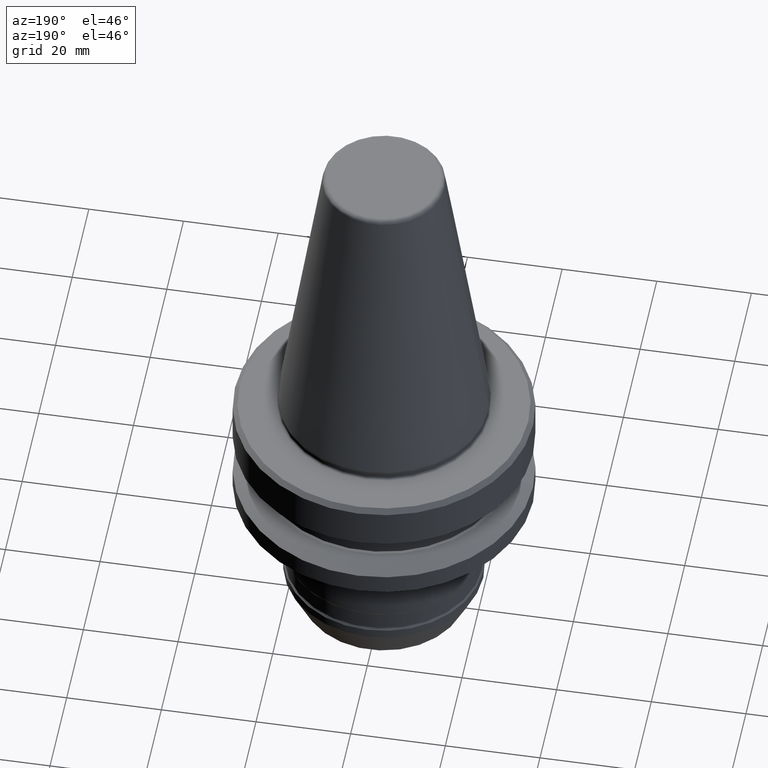
[diagram: clean part render]
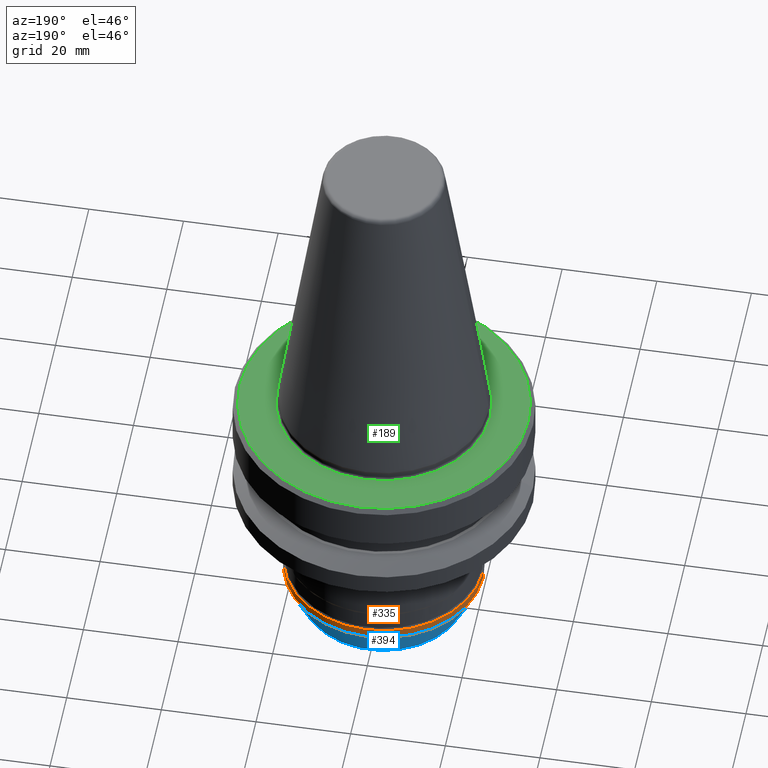
[diagram: same view with three faces highlighted in distinct colors, each labeled with its STEP entity id]
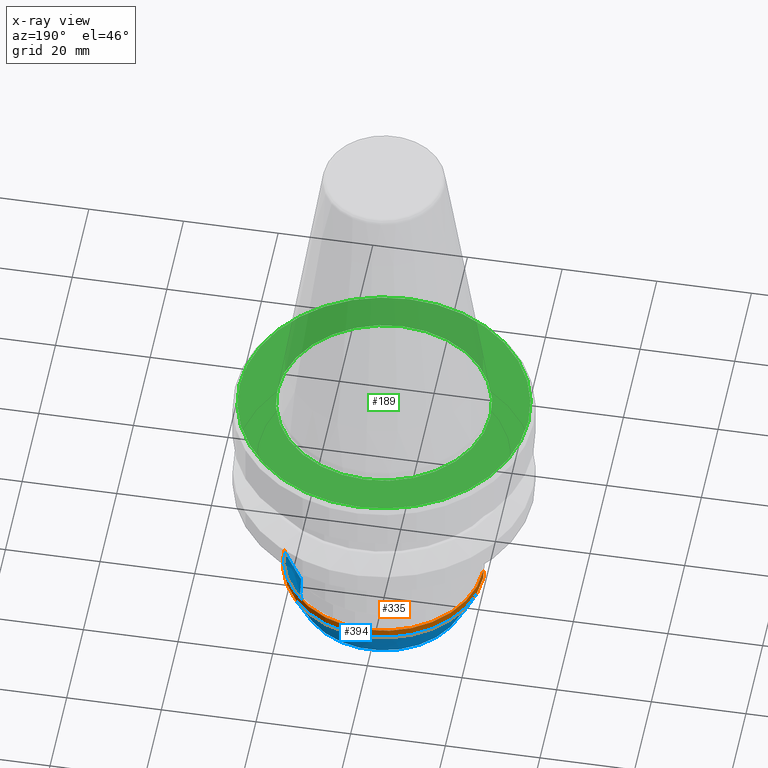
[diagram: x-ray of the same camera — body ghosted, the three highlighted faces saturated]
A machine part, auxiliary view with three faces highlighted in distinct colors.
The next image is the same camera in x-ray (body ghosted, the three faces saturated) — at least one of them is partly hidden behind the body in this view.
Their STEP definitions:

[orange] entity #335 — the highlighted cylindrical surface (partial cylindrical patch) has radius 21 mm, axis along (-0, -0, 1).
#58 = LINE ( 'NONE', #1217, #71 ) ;
#62 = AXIS2_PLACEMENT_3D ( 'NONE', #1149, #605, #1219 ) ;
#63 = CARTESIAN_POINT ( 'NONE',  ( 21.00000000002015500, 0.0000000000000000000, -48.50422577833094100 ) ) ;
#67 = DIRECTION ( 'NONE',  ( -0.0000000000000000000, -0.0000000000000000000, 1.000000000000000000 ) ) ;
#71 = VECTOR ( 'NONE', #884, 1000.000000000000000 ) ;
#83 = DIRECTION ( 'NONE',  ( 1.000000000000000000, 0.0000000000000000000, 0.0000000000000000000 ) ) ;
#121 = EDGE_CURVE ( 'NONE', #1015, #1044, #574, .T. ) ;
#172 = EDGE_CURVE ( 'NONE', #764, #1015, #526, .T. ) ;
#219 = DIRECTION ( 'NONE',  ( -0.0000000000000000000, -0.0000000000000000000, 1.000000000000000000 ) ) ;
#235 = CARTESIAN_POINT ( 'NONE',  ( 0.0000000000000000000, 0.0000000000000000000, -48.50422577833094100 ) ) ;
#240 = CARTESIAN_POINT ( 'NONE',  ( -21.00000000002015500, 2.571758278211910000E-015, -50.49422577833109900 ) ) ;
#265 = CIRCLE ( 'NONE', #271, 21.00000000002015500 ) ;
#271 = AXIS2_PLACEMENT_3D ( 'NONE', #235, #994, #83 ) ;
#331 = CARTESIAN_POINT ( 'NONE',  ( 0.0000000000000000000, 0.0000000000000000000, 112.2638323510917200 ) ) ;
#335 = ADVANCED_FACE ( 'NONE', ( #375 ), #368, .T. ) ;
#368 = CYLINDRICAL_SURFACE ( 'NONE', #371, 21.00000000002015500 ) ;
#371 = AXIS2_PLACEMENT_3D ( 'NONE', #331, #219, #1010 ) ;
#375 = FACE_OUTER_BOUND ( 'NONE', #1236, .T. ) ;
#526 = CIRCLE ( 'NONE', #62, 21.00000000002015500 ) ;
#528 = EDGE_CURVE ( 'NONE', #706, #1044, #265, .T. ) ;
#553 = VECTOR ( 'NONE', #67, 1000.000000000000000 ) ;
#574 = LINE ( 'NONE', #1060, #553 ) ;
#605 = DIRECTION ( 'NONE',  ( -0.0000000000000000000, -0.0000000000000000000, 1.000000000000000000 ) ) ;
#629 = ORIENTED_EDGE ( 'NONE', *, *, #172, .T. ) ;
#706 = VERTEX_POINT ( 'NONE', #63 ) ;
#764 = VERTEX_POINT ( 'NONE', #1177 ) ;
#812 = ORIENTED_EDGE ( 'NONE', *, *, #528, .F. ) ;
#884 = DIRECTION ( 'NONE',  ( -0.0000000000000000000, -0.0000000000000000000, 1.000000000000000000 ) ) ;
#981 = ORIENTED_EDGE ( 'NONE', *, *, #1242, .F. ) ;
#994 = DIRECTION ( 'NONE',  ( -0.0000000000000000000, -0.0000000000000000000, 1.000000000000000000 ) ) ;
#1010 = DIRECTION ( 'NONE',  ( 1.000000000000000000, 0.0000000000000000000, 0.0000000000000000000 ) ) ;
#1015 = VERTEX_POINT ( 'NONE', #240 ) ;
#1031 = CARTESIAN_POINT ( 'NONE',  ( -21.00000000002015500, 2.571758278211910000E-015, -48.50422577833094100 ) ) ;
#1044 = VERTEX_POINT ( 'NONE', #1031 ) ;
#1060 = CARTESIAN_POINT ( 'NONE',  ( -21.00000000002015500, 2.571758278211910000E-015, 112.2638323510917200 ) ) ;
#1149 = CARTESIAN_POINT ( 'NONE',  ( 0.0000000000000000000, 0.0000000000000000000, -50.49422577833109900 ) ) ;
#1177 = CARTESIAN_POINT ( 'NONE',  ( 21.00000000002015500, 0.0000000000000000000, -50.49422577833109900 ) ) ;
#1211 = ORIENTED_EDGE ( 'NONE', *, *, #121, .T. ) ;
#1217 = CARTESIAN_POINT ( 'NONE',  ( 21.00000000002015500, 0.0000000000000000000, 112.2638323510917200 ) ) ;
#1219 = DIRECTION ( 'NONE',  ( 1.000000000000000000, 0.0000000000000000000, 0.0000000000000000000 ) ) ;
#1236 = EDGE_LOOP ( 'NONE', ( #629, #1211, #812, #981 ) ) ;
#1242 = EDGE_CURVE ( 'NONE', #764, #706, #58, .T. ) ;

[blue] entity #394 — the highlighted conical surface has half-angle 25 deg.
#34 = ORIENTED_EDGE ( 'NONE', *, *, #1243, .T. ) ;
#62 = AXIS2_PLACEMENT_3D ( 'NONE', #1149, #605, #1219 ) ;
#65 = CIRCLE ( 'NONE', #449, 17.50000000001943000 ) ;
#92 = CARTESIAN_POINT ( 'NONE',  ( -17.50000000001943000, 2.357445088361078500E-015, -58.00000000011409900 ) ) ;
#169 = CARTESIAN_POINT ( 'NONE',  ( 17.50000000001943000, 0.0000000000000000000, -58.00000000011409900 ) ) ;
#172 = EDGE_CURVE ( 'NONE', #764, #1015, #526, .T. ) ;
#214 = VECTOR ( 'NONE', #1134, 1000.000000000000000 ) ;
#226 = LINE ( 'NONE', #677, #214 ) ;
#240 = CARTESIAN_POINT ( 'NONE',  ( -21.00000000002015500, 2.571758278211910000E-015, -50.49422577833109900 ) ) ;
#284 = VECTOR ( 'NONE', #1076, 1000.000000000000000 ) ;
#287 = LINE ( 'NONE', #418, #284 ) ;
#313 = CONICAL_SURFACE ( 'NONE', #665, 17.50000000001943000, 0.4363323129986848600 ) ;
#344 = FACE_OUTER_BOUND ( 'NONE', #703, .T. ) ;
#394 = ADVANCED_FACE ( 'NONE', ( #344 ), #313, .T. ) ;
#418 = CARTESIAN_POINT ( 'NONE',  ( -17.50000000001943000, 2.143131898510247800E-015, -58.00000000011409900 ) ) ;
#446 = EDGE_CURVE ( 'NONE', #1190, #1015, #287, .T. ) ;
#449 = AXIS2_PLACEMENT_3D ( 'NONE', #509, #1151, #609 ) ;
#509 = CARTESIAN_POINT ( 'NONE',  ( 0.0000000000000000000, 0.0000000000000000000, -58.00000000011409900 ) ) ;
#520 = CARTESIAN_POINT ( 'NONE',  ( 0.0000000000000000000, 0.0000000000000000000, -58.00000000011409900 ) ) ;
#526 = CIRCLE ( 'NONE', #62, 21.00000000002015500 ) ;
#605 = DIRECTION ( 'NONE',  ( -0.0000000000000000000, -0.0000000000000000000, 1.000000000000000000 ) ) ;
#609 = DIRECTION ( 'NONE',  ( 1.000000000000000000, 0.0000000000000000000, 0.0000000000000000000 ) ) ;
#618 = DIRECTION ( 'NONE',  ( 1.000000000000000000, 0.0000000000000000000, 0.0000000000000000000 ) ) ;
#656 = EDGE_CURVE ( 'NONE', #673, #764, #226, .T. ) ;
#665 = AXIS2_PLACEMENT_3D ( 'NONE', #520, #1161, #618 ) ;
#673 = VERTEX_POINT ( 'NONE', #169 ) ;
#677 = CARTESIAN_POINT ( 'NONE',  ( 17.50000000001943000, 0.0000000000000000000, -58.00000000011409900 ) ) ;
#703 = EDGE_LOOP ( 'NONE', ( #34, #1099, #933, #1038 ) ) ;
#764 = VERTEX_POINT ( 'NONE', #1177 ) ;
#933 = ORIENTED_EDGE ( 'NONE', *, *, #172, .F. ) ;
#1015 = VERTEX_POINT ( 'NONE', #240 ) ;
#1038 = ORIENTED_EDGE ( 'NONE', *, *, #656, .F. ) ;
#1076 = DIRECTION ( 'NONE',  ( -0.4226182617407923100, 5.175581015020796500E-017, 0.9063077870366066400 ) ) ;
#1099 = ORIENTED_EDGE ( 'NONE', *, *, #446, .T. ) ;
#1134 = DIRECTION ( 'NONE',  ( 0.4226182617407923100, 0.0000000000000000000, 0.9063077870366066400 ) ) ;
#1149 = CARTESIAN_POINT ( 'NONE',  ( 0.0000000000000000000, 0.0000000000000000000, -50.49422577833109900 ) ) ;
#1151 = DIRECTION ( 'NONE',  ( -0.0000000000000000000, -0.0000000000000000000, 1.000000000000000000 ) ) ;
#1161 = DIRECTION ( 'NONE',  ( -0.0000000000000000000, -0.0000000000000000000, 1.000000000000000000 ) ) ;
#1177 = CARTESIAN_POINT ( 'NONE',  ( 21.00000000002015500, 0.0000000000000000000, -50.49422577833109900 ) ) ;
#1190 = VERTEX_POINT ( 'NONE', #92 ) ;
#1219 = DIRECTION ( 'NONE',  ( 1.000000000000000000, 0.0000000000000000000, 0.0000000000000000000 ) ) ;
#1243 = EDGE_CURVE ( 'NONE', #673, #1190, #65, .T. ) ;

[green] entity #189 — the highlighted planar face has unit normal (0, 0, -1).
#5 = DIRECTION ( 'NONE',  ( -0.0000000000000000000, -0.0000000000000000000, 1.000000000000000000 ) ) ;
#6 = ORIENTED_EDGE ( 'NONE', *, *, #478, .T. ) ;
#56 = AXIS2_PLACEMENT_3D ( 'NONE', #1087, #545, #1178 ) ;
#88 = CIRCLE ( 'NONE', #56, 30.49999999999975100 ) ;
#94 = EDGE_CURVE ( 'NONE', #1216, #902, #591, .T. ) ;
#125 = CARTESIAN_POINT ( 'NONE',  ( 0.0000000000000000000, 0.0000000000000000000, -2.000000000001556100 ) ) ;
#189 = ADVANCED_FACE ( 'NONE', ( #524, #512 ), #972, .F. ) ;
#227 = CARTESIAN_POINT ( 'NONE',  ( 0.0000000000000000000, 0.0000000000000000000, -2.000000000001556100 ) ) ;
#263 = DIRECTION ( 'NONE',  ( -0.0000000000000000000, -0.0000000000000000000, 1.000000000000000000 ) ) ;
#272 = CIRCLE ( 'NONE', #878, 30.49999999999975100 ) ;
#273 = CARTESIAN_POINT ( 'NONE',  ( -30.49999999999975100, 0.0000000000000000000, -2.000000000001556100 ) ) ;
#312 = DIRECTION ( 'NONE',  ( 1.000000000000000000, 0.0000000000000000000, 0.0000000000000000000 ) ) ;
#325 = EDGE_CURVE ( 'NONE', #902, #1216, #425, .T. ) ;
#345 = DIRECTION ( 'NONE',  ( 1.000000000000000000, 0.0000000000000000000, 0.0000000000000000000 ) ) ;
#378 = EDGE_LOOP ( 'NONE', ( #879, #825 ) ) ;
#425 = CIRCLE ( 'NONE', #613, 22.49999999999974400 ) ;
#478 = EDGE_CURVE ( 'NONE', #666, #747, #272, .T. ) ;
#511 = DIRECTION ( 'NONE',  ( -1.000000000000000000, 0.0000000000000000000, -0.0000000000000000000 ) ) ;
#512 = FACE_OUTER_BOUND ( 'NONE', #1073, .T. ) ;
#524 = FACE_BOUND ( 'NONE', #378, .T. ) ;
#530 = AXIS2_PLACEMENT_3D ( 'NONE', #797, #1058, #511 ) ;
#545 = DIRECTION ( 'NONE',  ( -0.0000000000000000000, -0.0000000000000000000, 1.000000000000000000 ) ) ;
#552 = AXIS2_PLACEMENT_3D ( 'NONE', #125, #263, #312 ) ;
#591 = CIRCLE ( 'NONE', #552, 22.49999999999974400 ) ;
#613 = AXIS2_PLACEMENT_3D ( 'NONE', #649, #5, #741 ) ;
#649 = CARTESIAN_POINT ( 'NONE',  ( 0.0000000000000000000, 0.0000000000000000000, -2.000000000001556100 ) ) ;
#666 = VERTEX_POINT ( 'NONE', #273 ) ;
#736 = CARTESIAN_POINT ( 'NONE',  ( 22.49999999999974400, 0.0000000000000000000, -2.000000000001278500 ) ) ;
#741 = DIRECTION ( 'NONE',  ( 1.000000000000000000, 0.0000000000000000000, 0.0000000000000000000 ) ) ;
#747 = VERTEX_POINT ( 'NONE', #808 ) ;
#756 = CARTESIAN_POINT ( 'NONE',  ( -22.49999999999974400, 2.755455298081513200E-015, -2.000000000001278500 ) ) ;
#797 = CARTESIAN_POINT ( 'NONE',  ( 0.0000000000000000000, 30.49999999999975100, -2.000000000001556100 ) ) ;
#808 = CARTESIAN_POINT ( 'NONE',  ( 30.49999999999975100, 3.796405077356757200E-015, -2.000000000001556100 ) ) ;
#825 = ORIENTED_EDGE ( 'NONE', *, *, #325, .F. ) ;
#878 = AXIS2_PLACEMENT_3D ( 'NONE', #227, #929, #345 ) ;
#879 = ORIENTED_EDGE ( 'NONE', *, *, #94, .F. ) ;
#902 = VERTEX_POINT ( 'NONE', #756 ) ;
#929 = DIRECTION ( 'NONE',  ( -0.0000000000000000000, -0.0000000000000000000, 1.000000000000000000 ) ) ;
#972 = PLANE ( 'NONE',  #530 ) ;
#1058 = DIRECTION ( 'NONE',  ( 0.0000000000000000000, 0.0000000000000000000, -1.000000000000000000 ) ) ;
#1073 = EDGE_LOOP ( 'NONE', ( #6, #1138 ) ) ;
#1087 = CARTESIAN_POINT ( 'NONE',  ( 0.0000000000000000000, 0.0000000000000000000, -2.000000000001556100 ) ) ;
#1138 = ORIENTED_EDGE ( 'NONE', *, *, #1199, .T. ) ;
#1178 = DIRECTION ( 'NONE',  ( 1.000000000000000000, 0.0000000000000000000, 0.0000000000000000000 ) ) ;
#1199 = EDGE_CURVE ( 'NONE', #747, #666, #88, .T. ) ;
#1216 = VERTEX_POINT ( 'NONE', #736 ) ;